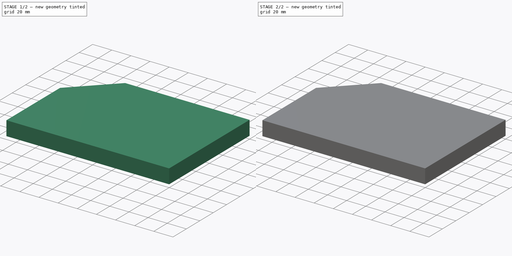
[diagram: build sequence overview — one tinted view per stage of 2, left to right]
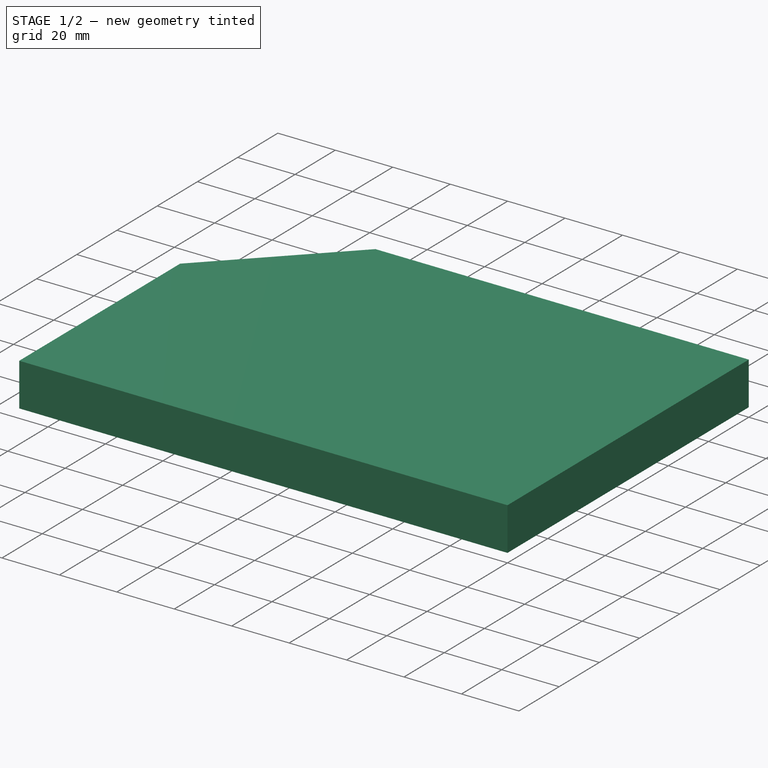
[diagram: stage 1 of 2 — iso view after this stage's code; geometry added in this stage tinted green]
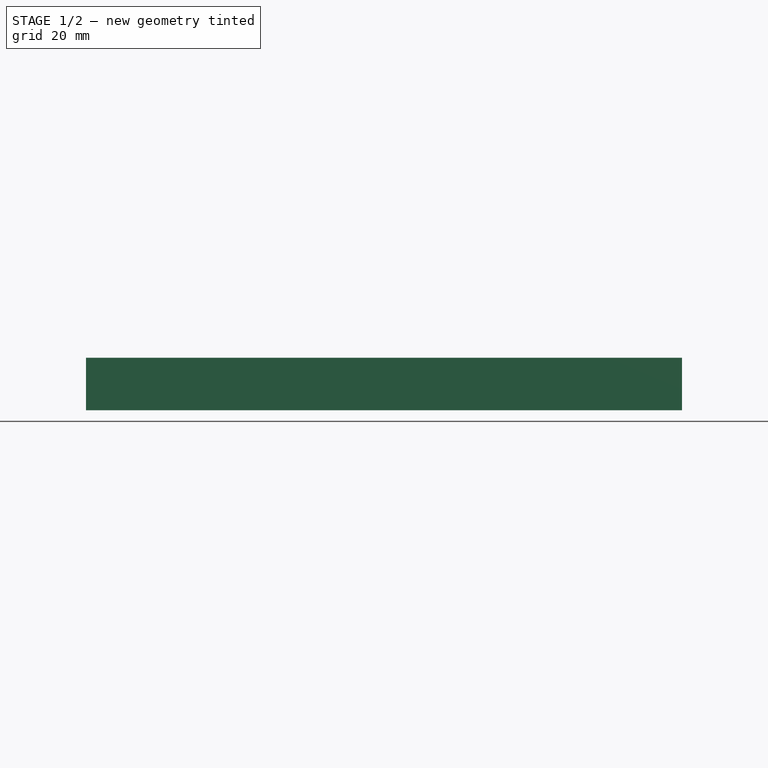
[diagram: stage 1 of 2 — front view after this stage's code; geometry added in this stage tinted green]
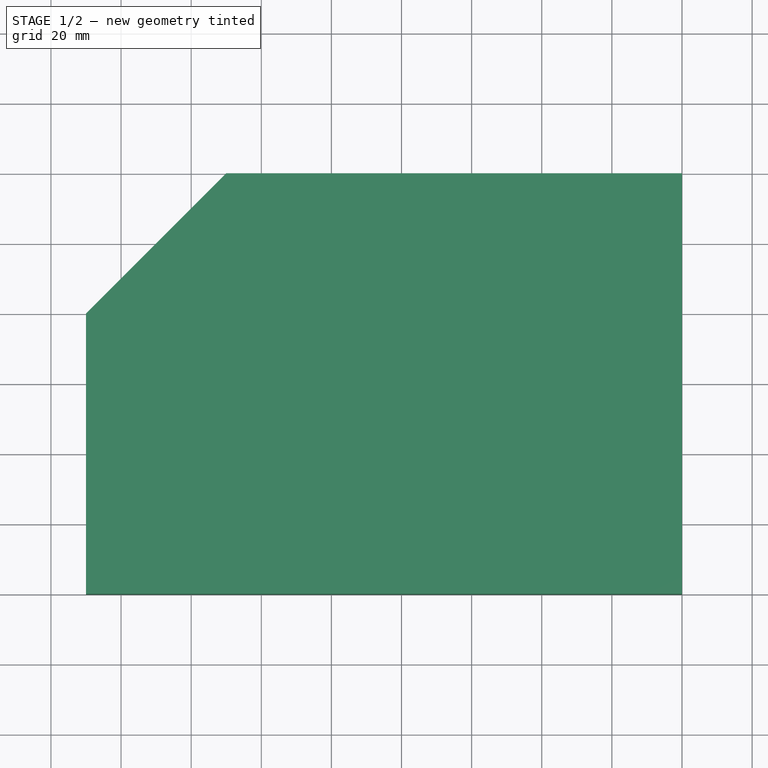
[diagram: stage 1 of 2 — top view after this stage's code; geometry added in this stage tinted green]
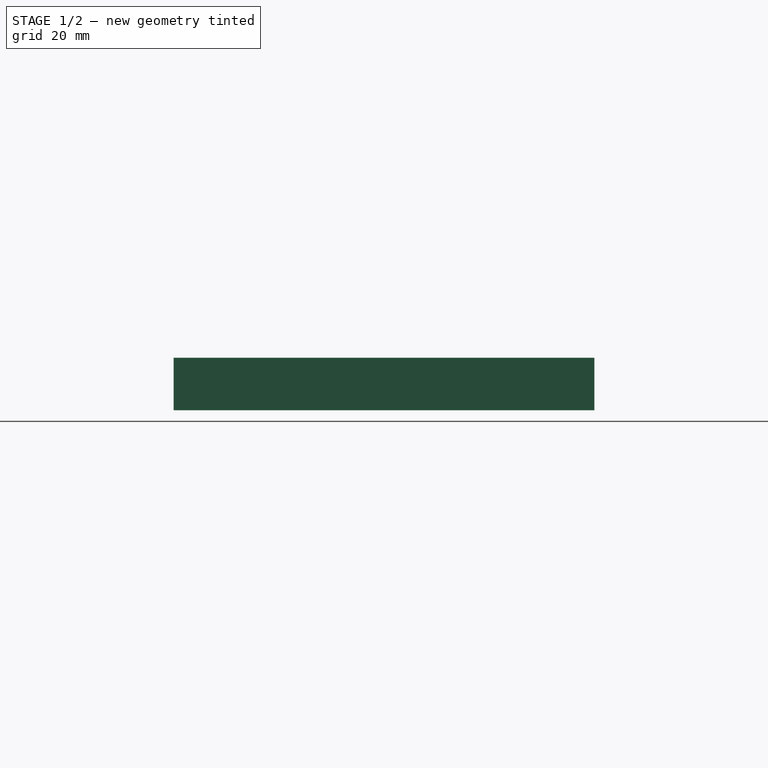
[diagram: stage 1 of 2 — right view after this stage's code; geometry added in this stage tinted green]
FCSTD DOCUMENT  (FreeCAD 0.18R4 (GitTag))
Label: Divider-F
License: All rights reserved
LicenseURL: http://en.wikipedia.org/wiki/All_rights_reserved
objects: Sketcher::SketchObject×2, PartDesign::Pad×1, PartDesign::Pocket×1, PartDesign::Body×1, App::Part×1
note: 7 computed .brp shape members not serialized (recipe doc carries the construction recipe); baked Part::Feature solids carry a one-line shape summary decoded from their .brp

FEATURE [Sketcher::SketchObject] CopySketch  label="Sketch"
  MapMode = 5
  Support = -> [XY_Plane001]
  sketch-geometry (5):
    g0: LineSegment StartX=-170 StartY=0 StartZ=0 EndX=-170 EndY=80 EndZ=0
    g1: LineSegment StartX=-170 StartY=80 StartZ=0 EndX=-130 EndY=120 EndZ=0
    g2: LineSegment StartX=-130 StartY=120 StartZ=0 EndX=0 EndY=120 EndZ=0
    g3: LineSegment StartX=0 StartY=120 StartZ=0 EndX=0 EndY=0 EndZ=0
    g4: LineSegment StartX=0 StartY=0 StartZ=0 EndX=-170 EndY=0 EndZ=0
  constraints (14):
    c: Coincident(g0,g1)
    c: Coincident(g1,g2)
    c: Vertical(g0)
    c: Horizontal(g2)
    c: Distance(g0) = 80
    c: Distance(g2) = 130
    c: Vertical(g3)
    c: Coincident(g2,g3)
    c: Horizontal(g4)
    c: Coincident(g0,g4)
    c: Coincident(g3,g-1)
    c: Coincident(g4,g3)
    c: Distance(g3) = 120
    c: Distance(g4) = 170
FEATURE [PartDesign::Pad] Pad
  Length = 15
  Length2 = 100
  Profile = -> CopySketch
  Type = 0
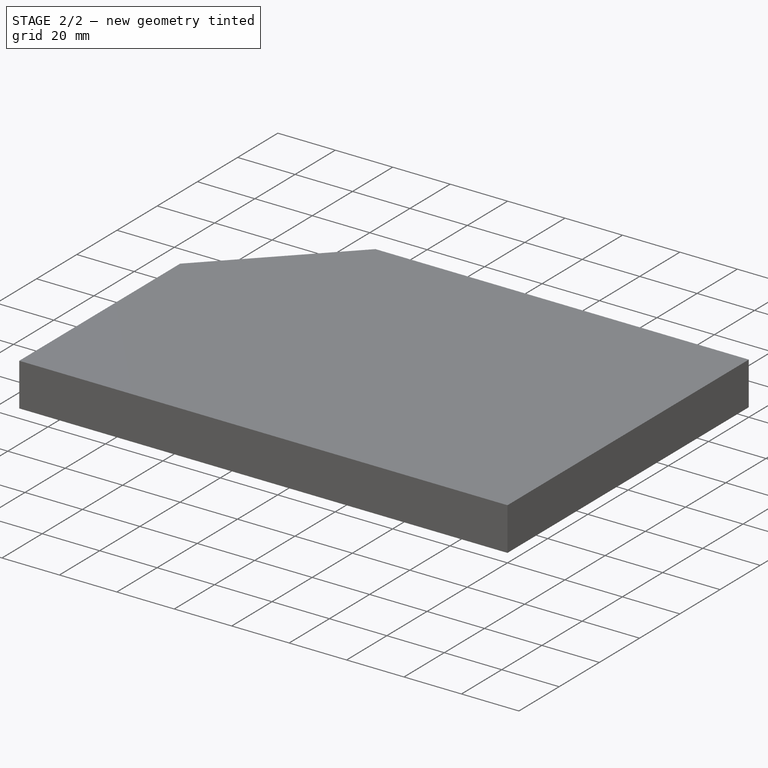
[diagram: stage 2 of 2 — iso view after this stage's code; geometry added in this stage tinted green]
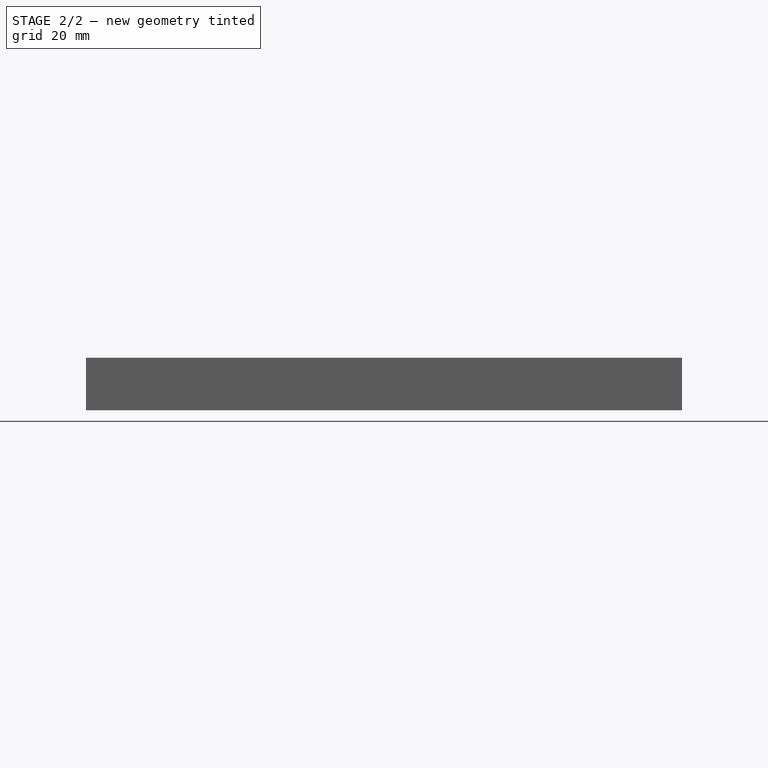
[diagram: stage 2 of 2 — front view after this stage's code; geometry added in this stage tinted green]
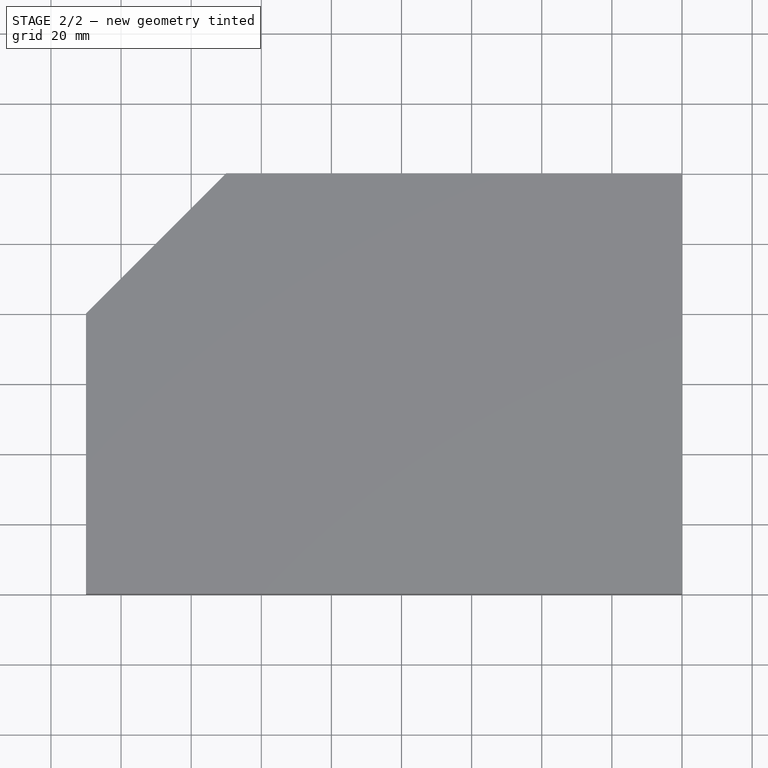
[diagram: stage 2 of 2 — top view after this stage's code; geometry added in this stage tinted green]
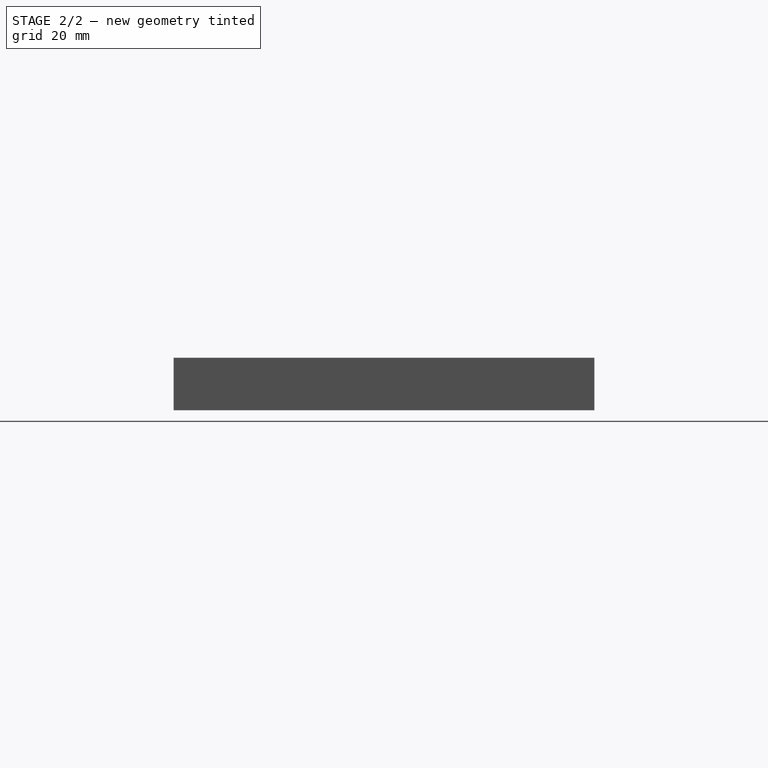
[diagram: stage 2 of 2 — right view after this stage's code; geometry added in this stage tinted green]
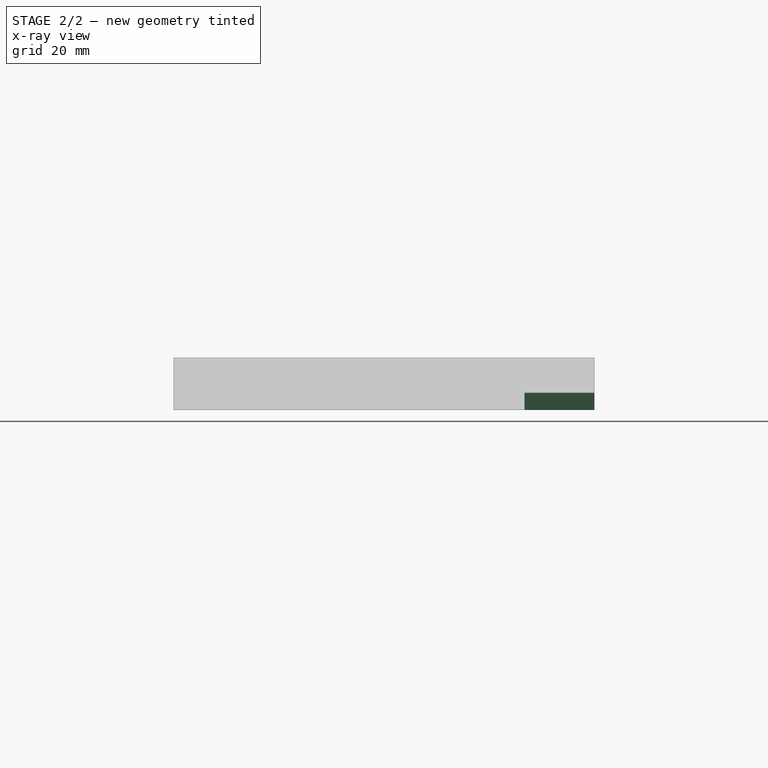
[diagram: stage 2 of 2 — x-ray composite at the right view; earlier geometry ghosted, this stage's added geometry solid]
FEATURE [Sketcher::SketchObject] Sketch  label="Sketch001"
  MapMode = 5
  Placement = pos=(0,0,0) rot=(1,0,0;3.14159rad)
  Support = -> [Pad]
  sketch-geometry (4):
    g0: LineSegment StartX=-60 StartY=-125 StartZ=0 EndX=-70 EndY=-125 EndZ=0
    g1: LineSegment StartX=-70 StartY=-125 StartZ=0 EndX=-70 EndY=-100 EndZ=0
    g2: LineSegment StartX=-70 StartY=-100 StartZ=0 EndX=-60 EndY=-100 EndZ=0
    g3: LineSegment StartX=-60 StartY=-100 StartZ=0 EndX=-60 EndY=-125 EndZ=0
  constraints (12):
    c: Coincident(g0,g1)
    c: Coincident(g1,g2)
    c: Coincident(g2,g3)
    c: Coincident(g3,g0)
    c: Horizontal(g0)
    c: Horizontal(g2)
    c: Vertical(g1)
    c: Vertical(g3)
    c: Distance(g3) = 25
    c: Distance(g0) = 10
    c: Distance(g2,g-1) = 100
    c: Distance(g2,g-2) = 60
FEATURE [PartDesign::Pocket] Pocket
  BaseFeature = -> Pad
  Length = 5
  Length2 = 100
  Profile = -> Sketch
  Type = 0
FEATURE [PartDesign::Body] Body  label="Side"
  Group = -> [CopySketch,Pad,Sketch,Pocket]
  Origin = -> Origin001
  Tip = -> Pocket
FEATURE [App::Part] Part
  Group = -> [Body]
  Origin = -> Origin
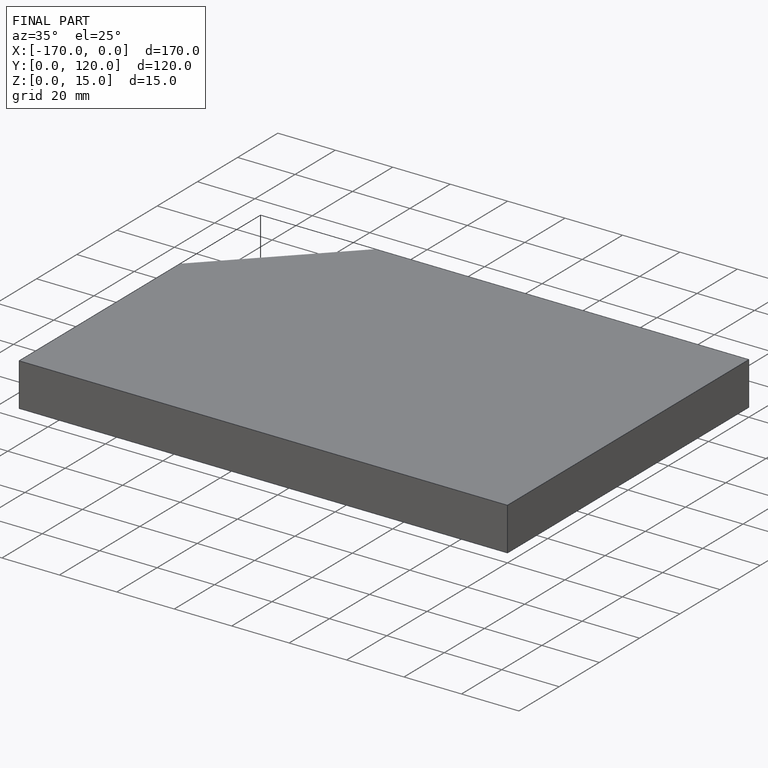
[diagram: finished part — iso view with bounding-box wireframe]
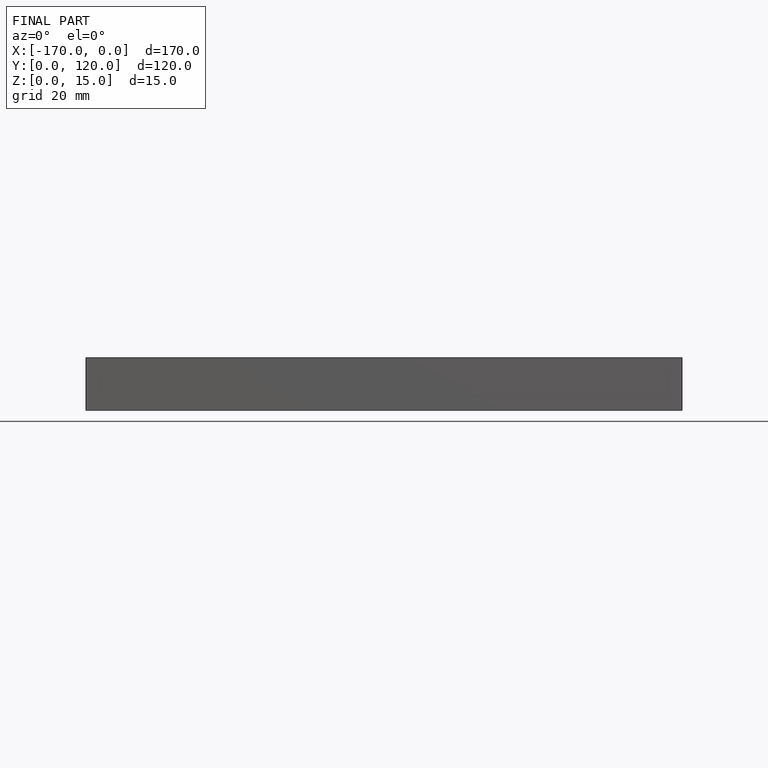
[diagram: finished part — front view with bounding-box wireframe]
